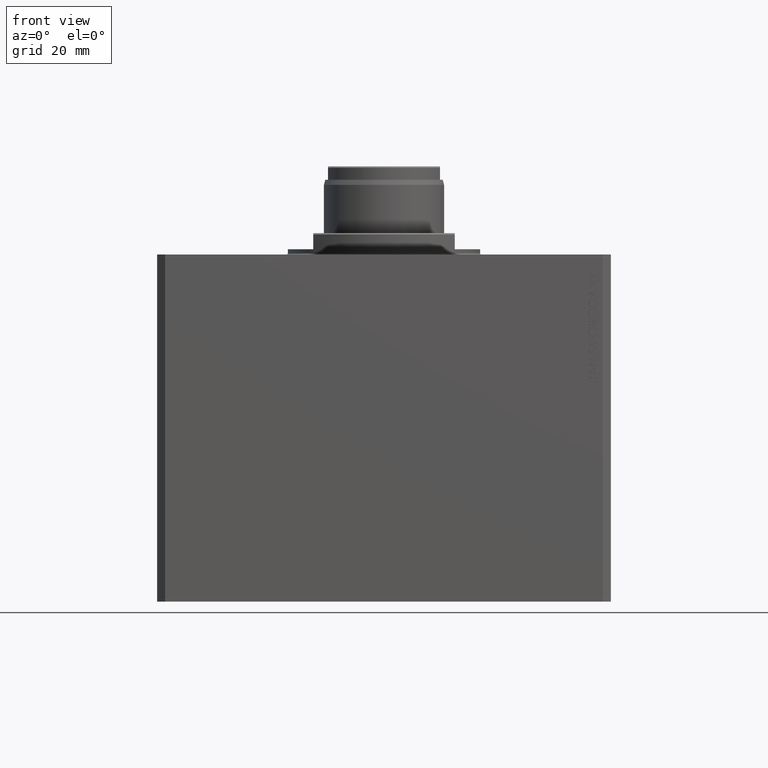
[diagram: clean part render]
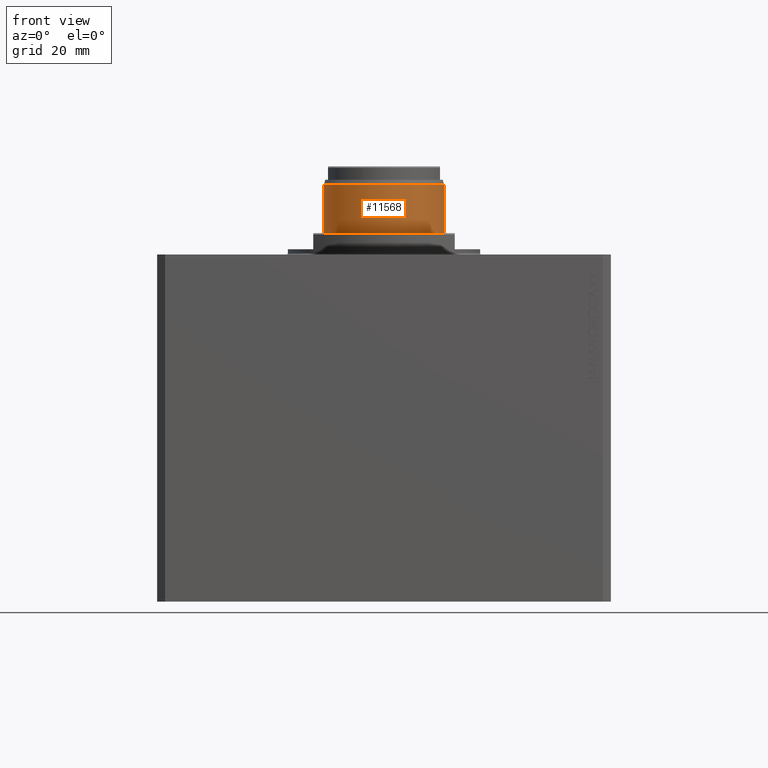
[diagram: same view with one face highlighted and labeled with its STEP entity id]
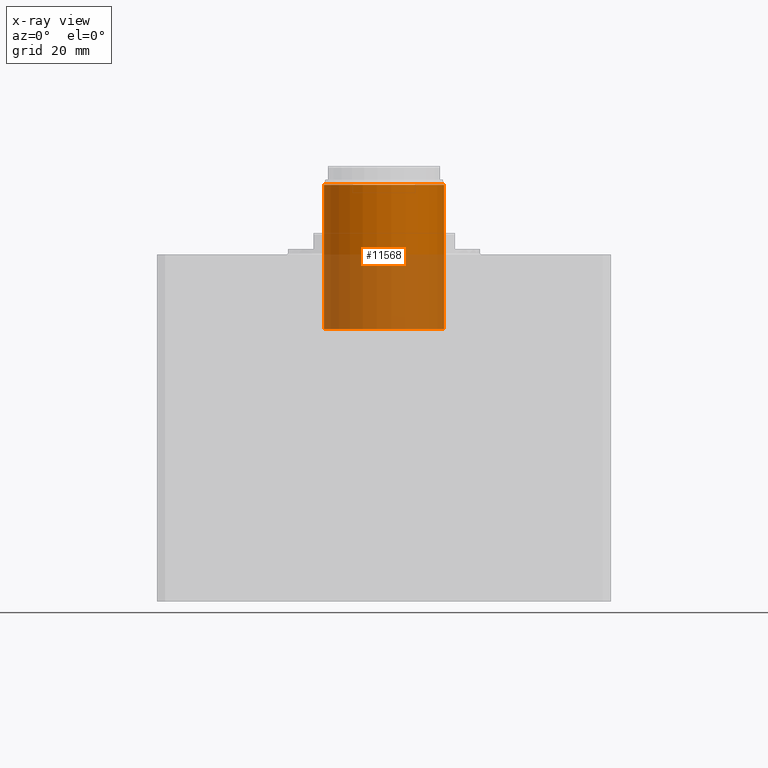
[diagram: x-ray of the same camera — body ghosted, the highlighted face saturated]
A machine part, front view. The second image highlights one B-rep face of the part: STEP entity #11568.
The next image is the same camera in x-ray: the body ghosted, the highlighted face saturated — about 52% of this face is hidden behind the body in this view.
In plain terms, the highlighted cylindrical surface (partial cylindrical patch) has radius 22.5 mm, axis along (0, -0, 1).
Its self-contained STEP definition (entity closure, byte-faithful):
#1118 = CARTESIAN_POINT ( 'NONE',  ( -61.00000000000000000, 2.755455298081544778E-15, 22.50000000000000000 ) ) ;
#1245 = CARTESIAN_POINT ( 'NONE',  ( -6.918686402804942404, 0.000000000000000000, 22.50000000000000000 ) ) ;
#1846 = VERTEX_POINT ( 'NONE', #25176 ) ;
#1893 = CIRCLE ( 'NONE', #38904, 22.50000000000000000 ) ;
#2277 = VERTEX_POINT ( 'NONE', #1245 ) ;
#2651 = VECTOR ( 'NONE', #7792, 1000.000000000000000 ) ;
#4770 = CARTESIAN_POINT ( 'NONE',  ( -6.918686402804942404, 0.000000000000000000, 0.000000000000000000 ) ) ;
#7792 = DIRECTION ( 'NONE',  ( 1.000000000000000000, -0.000000000000000000, -0.000000000000000000 ) ) ;
#8316 = CARTESIAN_POINT ( 'NONE',  ( -6.918686402804942404, 2.755455298081544778E-15, -22.50000000000000000 ) ) ;
#8518 = DIRECTION ( 'NONE',  ( 1.000000000000000000, -0.000000000000000000, -0.000000000000000000 ) ) ;
#10515 = DIRECTION ( 'NONE',  ( 1.000000000000000000, -0.000000000000000000, -0.000000000000000000 ) ) ;
#11568 = ADVANCED_FACE ( 'NONE', ( #30496 ), #23167, .T. ) ;
#12080 = ORIENTED_EDGE ( 'NONE', *, *, #39160, .T. ) ;
#12126 = VERTEX_POINT ( 'NONE', #8316 ) ;
#19055 = VECTOR ( 'NONE', #10515, 1000.000000000000000 ) ;
#22115 = CARTESIAN_POINT ( 'NONE',  ( -61.00000000000000000, 0.000000000000000000, 0.000000000000000000 ) ) ;
#23167 = CYLINDRICAL_SURFACE ( 'NONE', #27201, 22.50000000000000000 ) ;
#25176 = CARTESIAN_POINT ( 'NONE',  ( -61.00000000000000000, 0.000000000000000000, -22.50000000000000000 ) ) ;
#25229 = DIRECTION ( 'NONE',  ( 0.000000000000000000, 0.000000000000000000, -1.000000000000000000 ) ) ;
#26713 = DIRECTION ( 'NONE',  ( 0.000000000000000000, 0.000000000000000000, -1.000000000000000000 ) ) ;
#27201 = AXIS2_PLACEMENT_3D ( 'NONE', #40321, #29831, #26713 ) ;
#29831 = DIRECTION ( 'NONE',  ( 1.000000000000000000, -0.000000000000000000, -0.000000000000000000 ) ) ;
#30496 = FACE_OUTER_BOUND ( 'NONE', #37480, .T. ) ;
#30800 = VERTEX_POINT ( 'NONE', #1118 ) ;
#30907 = ORIENTED_EDGE ( 'NONE', *, *, #42318, .T. ) ;
#31949 = DIRECTION ( 'NONE',  ( 0.000000000000000000, 0.000000000000000000, -1.000000000000000000 ) ) ;
#32496 = LINE ( 'NONE', #41892, #2651 ) ;
#34046 = AXIS2_PLACEMENT_3D ( 'NONE', #22115, #8518, #25229 ) ;
#36897 = CIRCLE ( 'NONE', #34046, 22.50000000000000000 ) ;
#37370 = EDGE_CURVE ( 'NONE', #2277, #12126, #1893, .T. ) ;
#37480 = EDGE_LOOP ( 'NONE', ( #42931, #30907, #12080, #41828 ) ) ;
#38140 = LINE ( 'NONE', #41054, #19055 ) ;
#38904 = AXIS2_PLACEMENT_3D ( 'NONE', #4770, #42221, #31949 ) ;
#39160 = EDGE_CURVE ( 'NONE', #1846, #12126, #38140, .T. ) ;
#39542 = EDGE_CURVE ( 'NONE', #30800, #2277, #32496, .T. ) ;
#40321 = CARTESIAN_POINT ( 'NONE',  ( 19.65248442594125322, 0.000000000000000000, 0.000000000000000000 ) ) ;
#41054 = CARTESIAN_POINT ( 'NONE',  ( 19.65248442594125322, 0.000000000000000000, -22.50000000000000000 ) ) ;
#41828 = ORIENTED_EDGE ( 'NONE', *, *, #37370, .F. ) ;
#41892 = CARTESIAN_POINT ( 'NONE',  ( 19.65248442594125322, 2.755455298081544778E-15, 22.50000000000000000 ) ) ;
#42221 = DIRECTION ( 'NONE',  ( 1.000000000000000000, -0.000000000000000000, -0.000000000000000000 ) ) ;
#42318 = EDGE_CURVE ( 'NONE', #30800, #1846, #36897, .T. ) ;
#42931 = ORIENTED_EDGE ( 'NONE', *, *, #39542, .F. ) ;